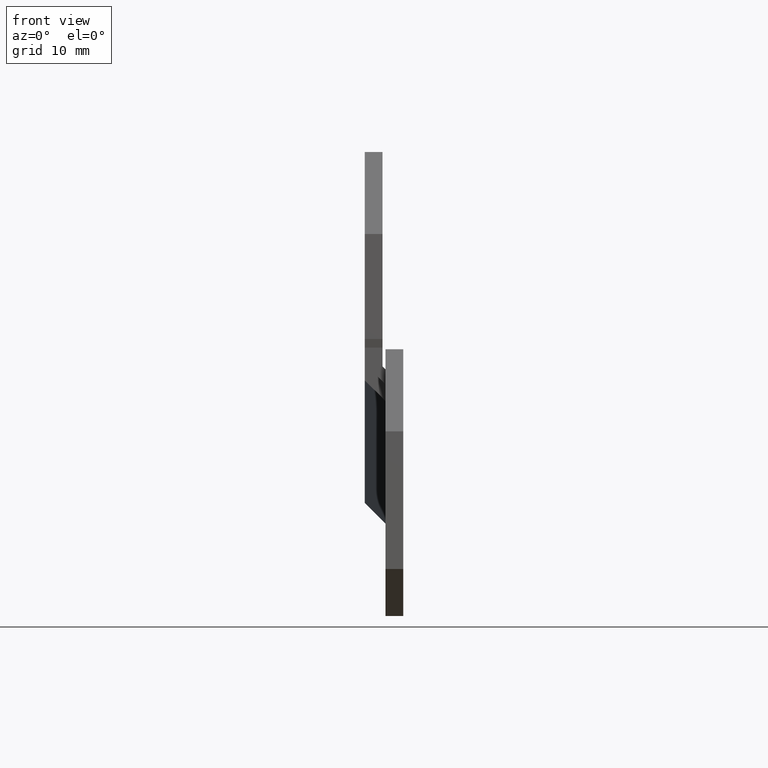
[diagram: clean part render]
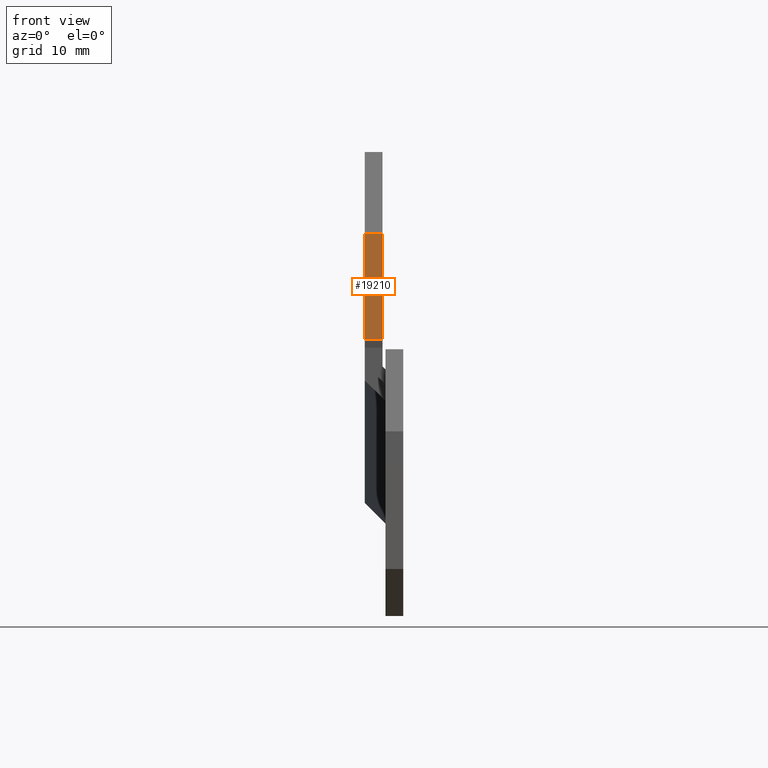
[diagram: same view with one face highlighted and labeled with its STEP entity id]
A machine part, front view. The second image highlights one B-rep face of the part: STEP entity #19210.
In plain terms, the highlighted planar face has unit normal (-0, -1, 0).
Its self-contained STEP definition (entity closure, byte-faithful):
#920=CARTESIAN_POINT('',(-28.5208398581476,-4.0727988328349,
15.5000000000049));
#930=VERTEX_POINT('',#920);
#960=CARTESIAN_POINT('',(-28.520839858147,9.83366000003753,
15.5000000000049));
#970=DIRECTION('',(-4.27297086603087E-14,-1.,-5.80601097978839E-30));
#980=VECTOR('',#970,1.);
#990=LINE('',#960,#980);
#1000=CARTESIAN_POINT('',(-28.520839858147,8.93443762974329,
15.5000000000049));
#1010=VERTEX_POINT('',#1000);
#1020=EDGE_CURVE('',#1010,#930,#990,.T.);
#2830=CARTESIAN_POINT('',(-28.520839858147,8.93443762974324,
13.3000000000077));
#2840=DIRECTION('',(1.05655906439346E-14,-2.11311812878693E-14,-1.));
#2850=VECTOR('',#2840,1.);
#2860=LINE('',#2830,#2850);
#2870=CARTESIAN_POINT('',(-28.520839858147,8.93443762974324,
13.3000001835674));
#2880=VERTEX_POINT('',#2870);
#2890=EDGE_CURVE('',#1010,#2880,#2860,.T.);
#3320=CARTESIAN_POINT('',(-28.5208398581476,-4.07279883283495,
13.3000001835674));
#3330=VERTEX_POINT('',#3320);
#3360=CARTESIAN_POINT('',(-28.5208398581476,-4.07279883283495,
13.3000000000077));
#3370=DIRECTION('',(-1.05655906439346E-14,2.11311812878692E-14,1.));
#3380=VECTOR('',#3370,1.);
#3390=LINE('',#3360,#3380);
#3400=EDGE_CURVE('',#3330,#930,#3390,.T.);
#16060=CARTESIAN_POINT('',(-28.5208398581523,-115.524193886559,
13.3000001835674));
#16070=DIRECTION('',(-4.27297086603087E-14,-1.,-3.40300457069311E-17));
#16080=VECTOR('',#16070,1.);
#16090=LINE('',#16060,#16080);
#16100=EDGE_CURVE('',#2880,#3330,#16090,.T.);
#19100=CARTESIAN_POINT('',(-28.5208398581476,-4.00697259014988,
15.5000000000051));
#19110=DIRECTION('',(-1.,4.27297086603087E-14,-1.05655906439355E-14));
#19120=DIRECTION('',(-4.2729708660309E-14,-1.,2.11311812878688E-14));
#19130=AXIS2_PLACEMENT_3D('',#19100,#19110,#19120);
#19140=PLANE('',#19130);
#19150=ORIENTED_EDGE('',*,*,#1020,.F.);
#19160=ORIENTED_EDGE('',*,*,#3400,.T.);
#19170=ORIENTED_EDGE('',*,*,#16100,.T.);
#19180=ORIENTED_EDGE('',*,*,#2890,.T.);
#19190=EDGE_LOOP('',(#19180,#19170,#19160,#19150));
#19200=FACE_OUTER_BOUND('',#19190,.T.);
#19210=ADVANCED_FACE('',(#19200),#19140,.T.);